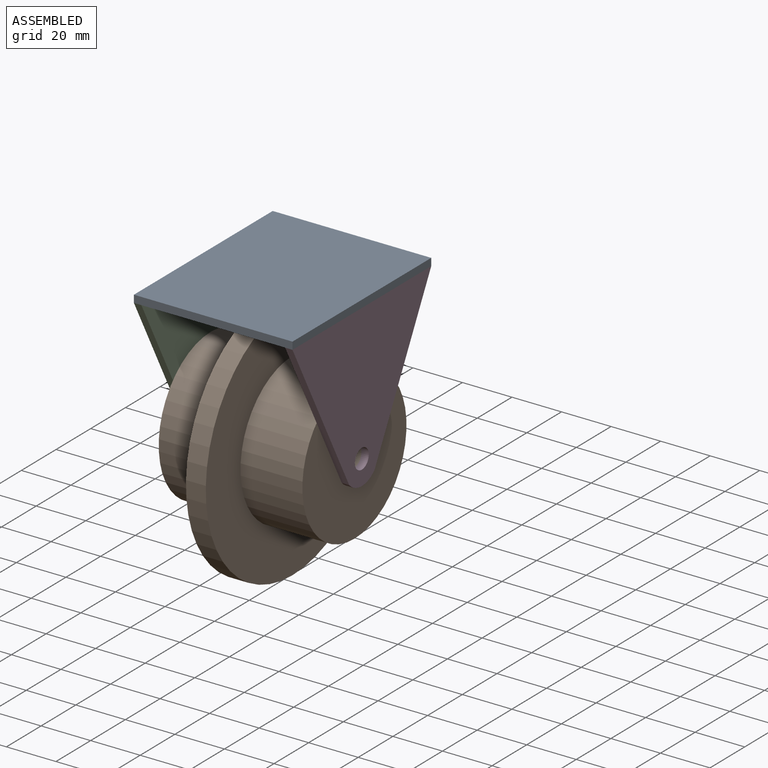
[diagram: assembled view]
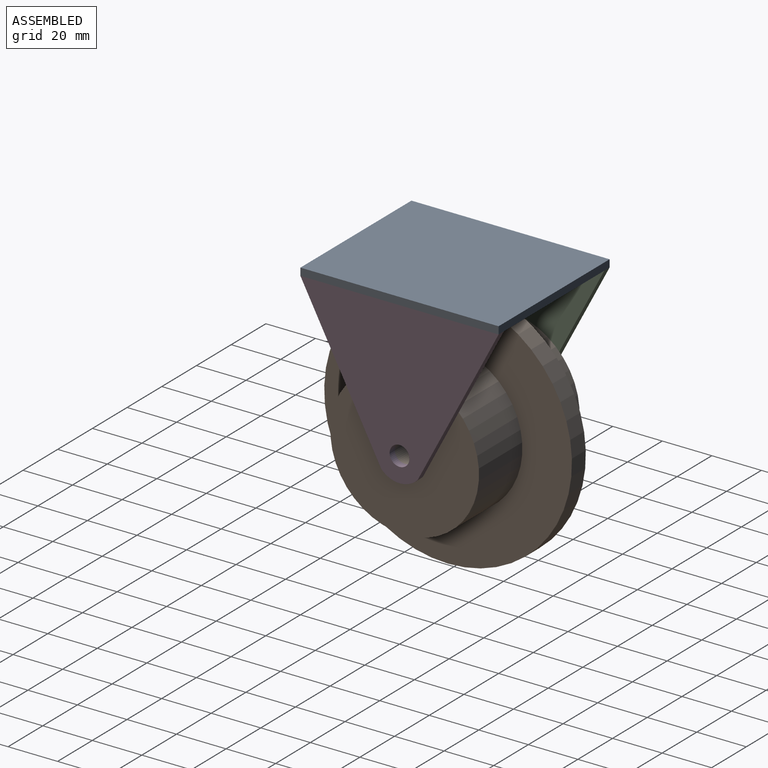
[diagram: assembled view, second angle]
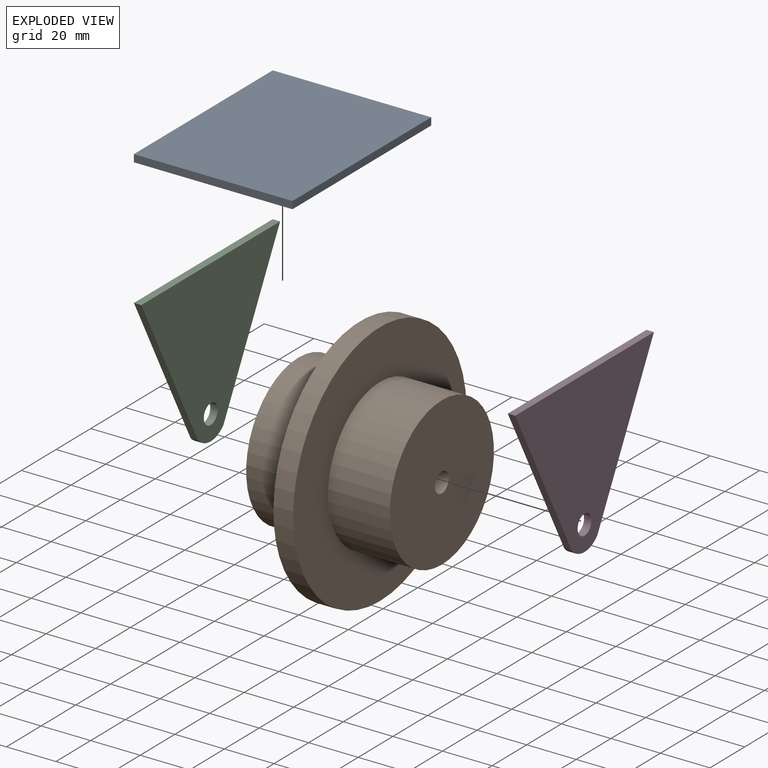
[diagram: exploded view]
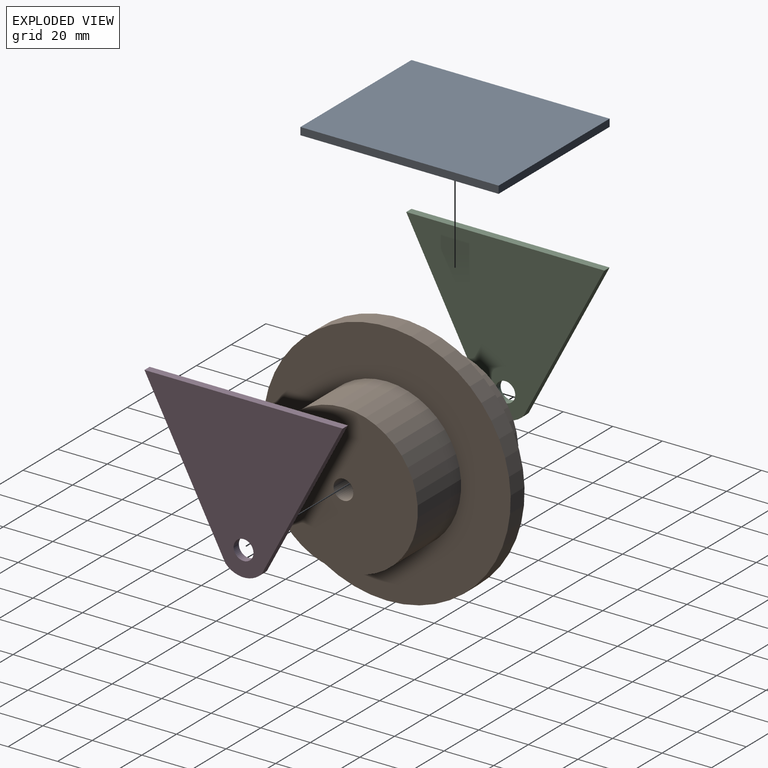
[diagram: exploded view, second angle]
ASSEMBLY  parts=4 mates=3
PART A: 6 faces, bbox 64x80x3 mm
  f0: plane 80x3mm, normal (1,0,0), area 240mm2, adj f1,f3,f4,f5
  f1: plane 64x3mm, normal (0,1,0), area 192mm2, adj f0,f2,f4,f5
  f2: plane 80x3mm, normal (-1,0,0), area 240mm2, adj f1,f3,f4,f5
  f3: plane 64x3mm, normal (0,-1,0), area 192mm2, adj f0,f2,f4,f5
  f4: plane 80x64mm, normal (0,0,1), area 5120mm2, adj f0,f1,f2,f3
  f5: plane 80x64mm, normal (0,0,-1), area 5120mm2, adj f0,f1,f2,f3
PART B: 8 faces, bbox 58x100x100 mm
  f0: cylinder r=50mm len=100mm, axis (-1,0,0), area 2513.3mm2, adj f1,f2
  f1: plane 100x100mm, normal (1,0,0), area 5026.5mm2, adj f0,f5
  f2: plane 100x100mm, normal (-1,0,0), area 5026.5mm2, adj f0,f3
  f3: cylinder r=30mm len=60mm, axis (1,0,0), area 4712.4mm2, adj f2,f4
  f4: plane 60x60mm, normal (-1,0,0), area 2777.2mm2, adj f3,f7
  f5: cylinder r=30mm len=60mm, axis (-1,0,0), area 4712.4mm2, adj f1,f6
  f6: plane 60x60mm, normal (1,0,0), area 2777.2mm2, adj f5,f7
  f7: cylinder r=4mm len=58mm, axis (-1,0,0), area 1457.7mm2, adj f4,f6
PART C: 7 faces, bbox 3x80x65 mm
  f0: plane 80x3mm, normal (0,0,1), area 240mm2, adj f1,f4,f5,f6
  f1: plane 61.81x32.67mm, normal (0,-0.88,-0.47), area 209.7mm2, adj f0,f2,f5,f6
  f2: cylinder r=10mm len=14.66mm, axis (-1,0,0), area 49.3mm2, adj f1,f4,f5,f6
  f3: cylinder r=4mm len=8mm, axis (-1,0,0), area 75.4mm2, adj f5,f6
  f4: plane 61.81x32.67mm, normal (0,0.88,-0.47), area 209.7mm2, adj f0,f2,f5,f6
  f5: plane 80x65mm, normal (1,0,0), area 2907.2mm2, adj f0,f1,f2,f3,f4
  f6: plane 80x65mm, normal (-1,0,0), area 2907.2mm2, adj f0,f1,f2,f3,f4
PART D: same geometry as C
PLACE A t=(-0.55,0.01,55.08)mm
PLACE B t=(-4.55,0.01,0.08)mm
PLACE C t=(-32.55,0.01,55.08)mm
PLACE D t=(28.45,0.01,55.08)mm
MATE planar D.f3 <-> B.f7  axis (-1,0,0) through (28.45,0.01,0.08)mm
MATE planar C.f3 <-> B.f7  axis (-1,0,0) through (-29.55,0.01,0.08)mm
MATE planar A.f5 <-> C.f0  axis (0,0,-1) through (-32.55,0.01,55.08)mm
